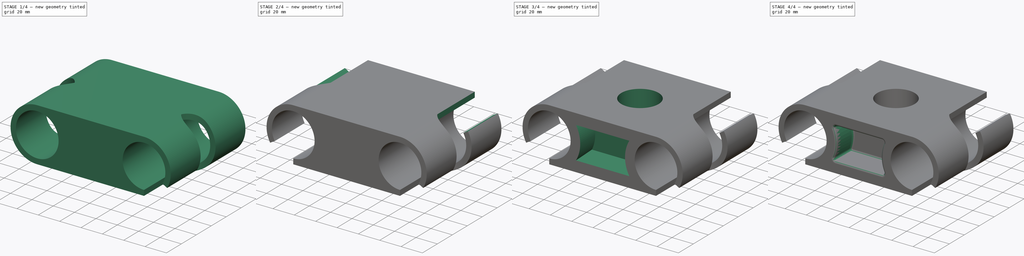
[diagram: build sequence overview — one tinted view per stage of 4, left to right]
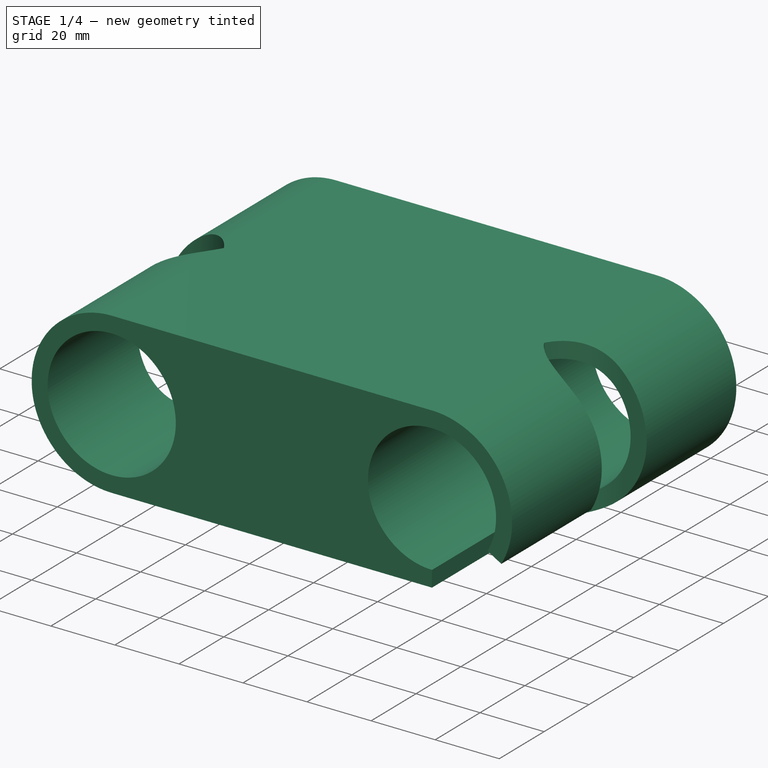
[diagram: stage 1 of 4 — iso view after this stage's code; geometry added in this stage tinted green]
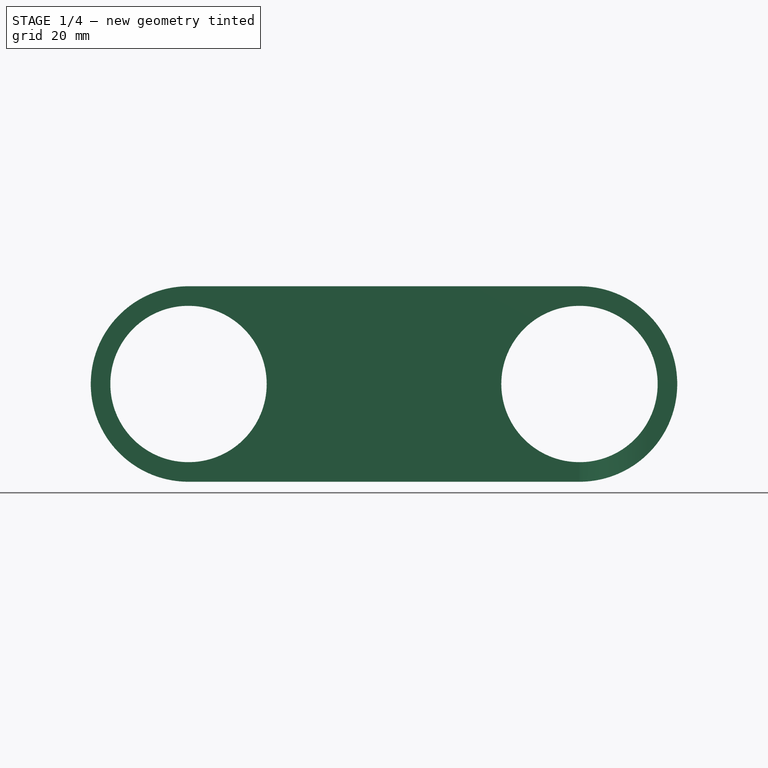
[diagram: stage 1 of 4 — front view after this stage's code; geometry added in this stage tinted green]
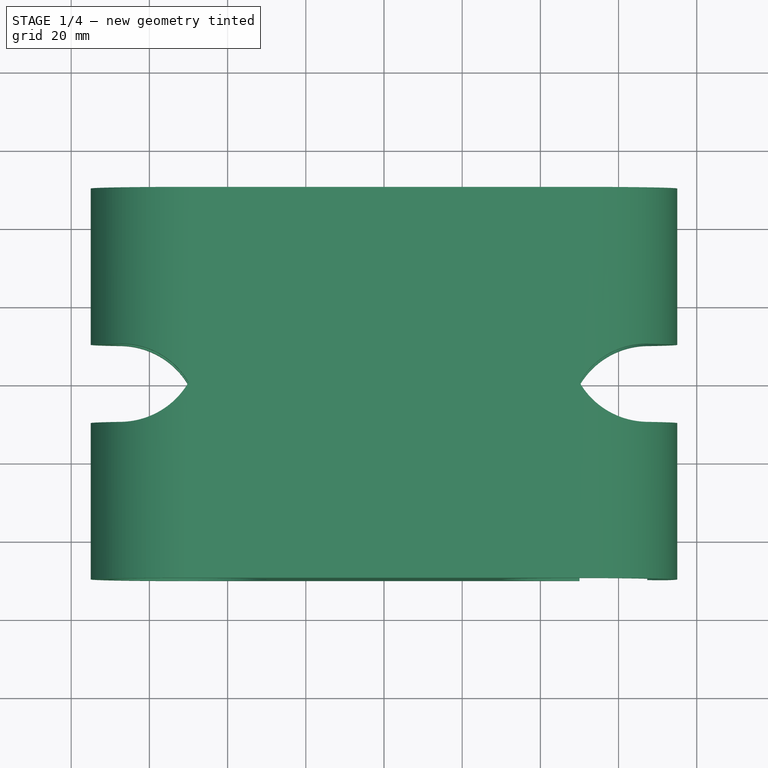
[diagram: stage 1 of 4 — top view after this stage's code; geometry added in this stage tinted green]
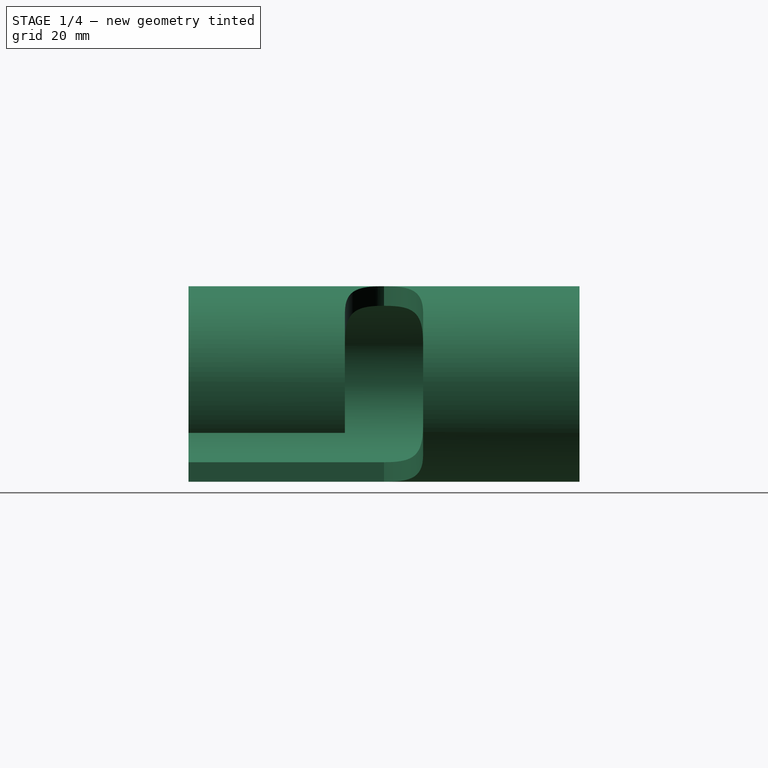
[diagram: stage 1 of 4 — right view after this stage's code; geometry added in this stage tinted green]
FCSTD DOCUMENT  (FreeCAD 1.0R39319 (Git))
Label: Mania2025
License: All rights reserved
LicenseURL: https://en.wikipedia.org/wiki/All_rights_reserved
objects: Sketcher::SketchObject×6, PartDesign::Pocket×5, PartDesign::Mirrored×4, PartDesign::Draft×2, PartDesign::Fillet×2, PartDesign::Pad×1, PartDesign::Body×1
note: 51 computed .brp shape members not serialized (recipe doc carries the construction recipe); baked Part::Feature solids carry a one-line shape summary decoded from their .brp

FEATURE [Sketcher::SketchObject] Sketch
  ArcFitTolerance = 1e-06
  AttachmentSupport = -> [XZ_Plane]
  FullyConstrained = true
  MakeInternals = false
  MapMode = 5
  Placement = pos=(0,0,0) rot=(1,0,0;1.5708rad)
  sketch-geometry (6):
    g0: ArcOfCircle CenterX=-50 CenterY=0 CenterZ=0 NormalX=0 NormalY=0 NormalZ=1 AngleXU=0 Radius=25 StartAngle=1.5708 EndAngle=4.71239
    g1: ArcOfCircle CenterX=50 CenterY=0 CenterZ=0 NormalX=0 NormalY=0 NormalZ=1 AngleXU=0 Radius=25 StartAngle=4.71239 EndAngle=7.85398
    g2: LineSegment StartX=-50 StartY=25 StartZ=0 EndX=50 EndY=25 EndZ=0
    g3: LineSegment StartX=-50 StartY=-25 StartZ=0 EndX=50 EndY=-25 EndZ=0
    g4: Circle CenterX=-50 CenterY=0 CenterZ=0 NormalX=0 NormalY=0 NormalZ=1 AngleXU=0 Radius=20
    g5: Circle CenterX=50 CenterY=0 CenterZ=0 NormalX=0 NormalY=0 NormalZ=1 AngleXU=0 Radius=20
  constraints (13):
    c: Tangent(g0,g2) = 1.5708
    c: Tangent(g0,g3) = -1.5708
    c: Tangent(g1,g2) = 1.5708
    c: Tangent(g1,g3) = -1.5708
    c: Equal(g0,g1)
    c: Horizontal(g3)
    c: DistanceX(g-1,g1) = 50
    c: Symmetric(g1,g0,g-1)
    c: Radius(g0) = 25
    c: Coincident(g4,g0)
    c: Coincident(g5,g1)
    c: Equal(g4,g5)
    c: Diameter(g4) = 40
FEATURE [PartDesign::Pad] Pad
  Direction = (0,-1,2e-16)
  Length = 100
  Length2 = 10
  Midplane = true
  Placement = pos=(0,0,0) rot=(1,0,0;1.5708rad)
  Profile = -> Sketch
  ReferenceAxis = -> Sketch [N_Axis]
  Refine = true
  Suppressed = false
  Type = 0
FEATURE [Sketcher::SketchObject] Sketch002
  ArcFitTolerance = 1e-06
  AttachmentSupport = -> [XY_Plane]
  FullyConstrained = true
  MakeInternals = false
  MapMode = 5
  sketch-geometry (7):
    g0: GeomPoint X=50 Y=-1.8e-15 Z=0
    g1: LineSegment StartX=82.3205 StartY=10 StartZ=0 EndX=67.3205 EndY=10 EndZ=0
    g2: LineSegment StartX=82.3205 StartY=0 StartZ=0 EndX=82.3205 EndY=10 EndZ=0
    g3: ArcOfCircle CenterX=67.3205 CenterY=-10 CenterZ=0 NormalX=0 NormalY=0 NormalZ=1 AngleXU=0 Radius=20 StartAngle=1.5708 EndAngle=2.61799
    g4: LineSegment StartX=67.3205 StartY=-10 StartZ=0 EndX=82.3205 EndY=-10 EndZ=0
    g5: ArcOfCircle CenterX=67.3205 CenterY=10 CenterZ=0 NormalX=0 NormalY=0 NormalZ=1 AngleXU=0 Radius=20 StartAngle=3.66519 EndAngle=4.71239
    g6: LineSegment StartX=82.3205 StartY=0 StartZ=0 EndX=82.3205 EndY=-10 EndZ=0
  constraints (19):
    c: Horizontal(g1)
    c: DistanceX(g1,g1) = 15
    c: Distance(g-1,g1) = 10
    c: Coincident(g2,g1)
    c: Vertical(g2)
    c: PointOnObject(g2,g-1)
    c: DistanceX(g-1,g0) = 50
    c: Coincident(g3,g0)
    c: Radius(g3) = 20
    c: Tangent(g3,g1) = -1.5708
    c: Horizontal(g4)
    c: Distance(g4,g1) = 20
    c: Coincident(g5,g0)
    c: Tangent(g5,g4) = -1.5708
    c: PointOnObject(g0,g-1)
    c: Vertical(g1,g4)
    c: Coincident(g6,g2)
    c: Vertical(g6)
    c: Coincident(g4,g6)
FEATURE [PartDesign::Pocket] Pocket
  BaseFeature = -> Pad
  Direction = (0,0,-1)
  Length = 5
  Length2 = 5
  Midplane = true
  Placement = pos=(0,0,0) rot=(1,0,0;1.5708rad)
  Profile = -> Sketch002
  ReferenceAxis = -> Sketch002 [N_Axis]
  Refine = true
  Suppressed = false
  Type = 1
FEATURE [PartDesign::Mirrored] Mirrored
  BaseFeature = -> Pocket
  MirrorPlane = -> YZ_Plane
  Originals = -> [Pocket]
  Placement = pos=(0,0,0) rot=(1,0,0;1.5708rad)
  Refine = true
  Suppressed = false
  TransformMode = 0
FEATURE [Sketcher::SketchObject] Sketch003
  ArcFitTolerance = 1e-06
  AttachmentSupport = -> [XZ_Plane]
  FullyConstrained = true
  MakeInternals = false
  MapMode = 5
  Placement = pos=(0,0,0) rot=(1,0,0;1.5708rad)
  sketch-geometry (5):
    g0: LineSegment StartX=50 StartY=0 StartZ=0 EndX=50 EndY=-70 EndZ=0
    g1: LineSegment StartX=50 StartY=-70 StartZ=0 EndX=100 EndY=-70 EndZ=0
    g2: LineSegment StartX=100 StartY=-70 StartZ=0 EndX=100 EndY=-28.8675 EndZ=0
    g3: LineSegment StartX=50 StartY=0 StartZ=0 EndX=100 EndY=-28.8675 EndZ=0
    g4: GeomPoint X=100 Y=-28.8675 Z=0
  constraints (14):
    c: Coincident(g0,g1)
    c: Coincident(g1,g2)
    c: Vertical(g0)
    c: Vertical(g2)
    c: Horizontal(g1)
    c: PointOnObject(g0,g-1)
    c: Coincident(g3,g0)
    c: Angle(g0,g3) = 1.0472
    c: PointOnObject(g4,g3)
    c: PointOnObject(g4,g2)
    c: DistanceX(g-1,g0) = 50
    c: Coincident(g3,g2)
    c: DistanceY(g0,g0) = 70
    c: DistanceX(g1,g1) = 50
FEATURE [PartDesign::Pocket] Pocket001
  BaseFeature = -> Mirrored
  Direction = (0,1,-2e-16)
  Length = 5
  Length2 = 5
  Placement = pos=(0,0,0) rot=(1,0,0;1.5708rad)
  Profile = -> Sketch003
  ReferenceAxis = -> Sketch003 [N_Axis]
  Refine = true
  Reversed = true
  Suppressed = false
  Type = 1
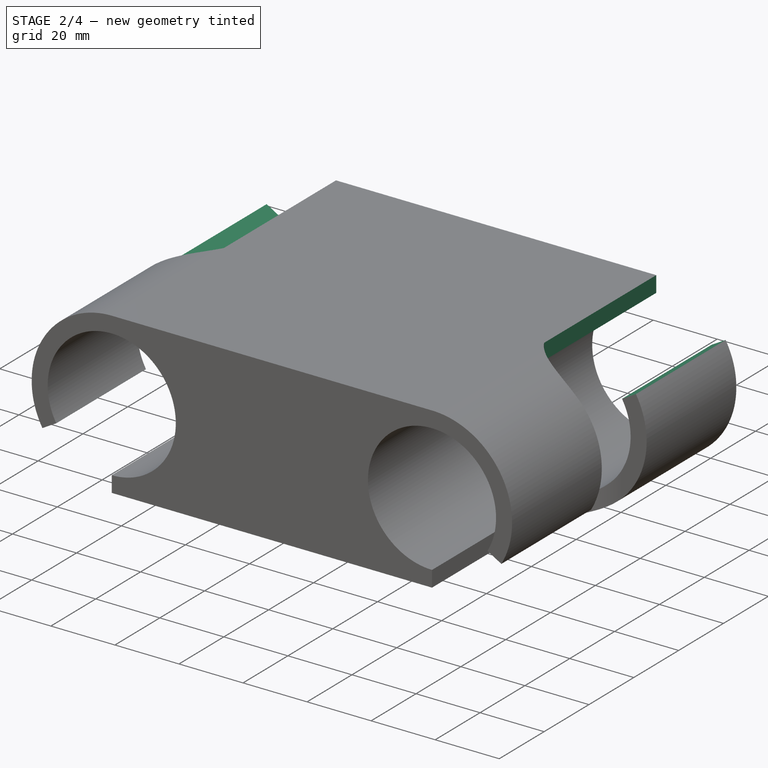
[diagram: stage 2 of 4 — iso view after this stage's code; geometry added in this stage tinted green]
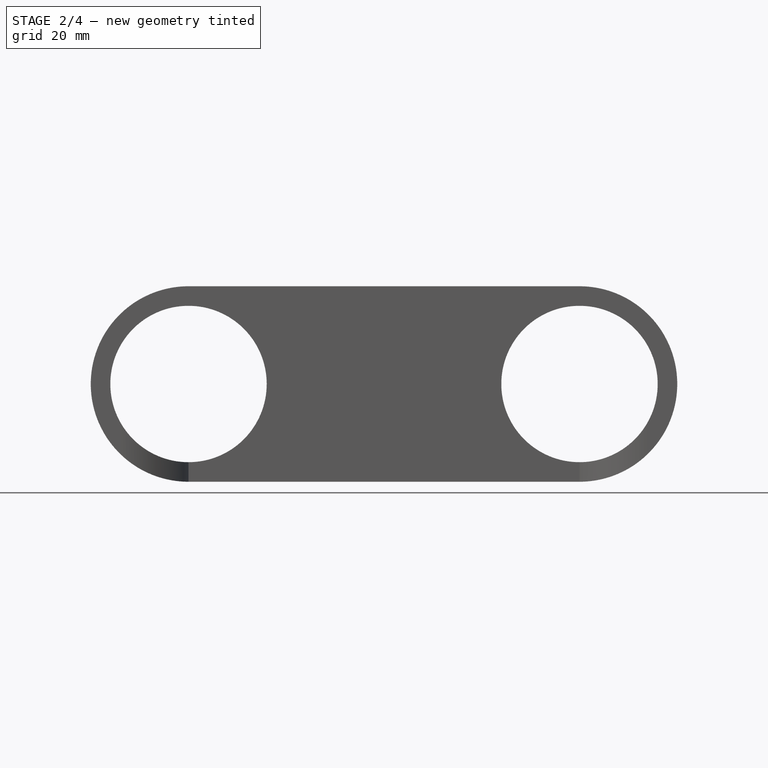
[diagram: stage 2 of 4 — front view after this stage's code; geometry added in this stage tinted green]
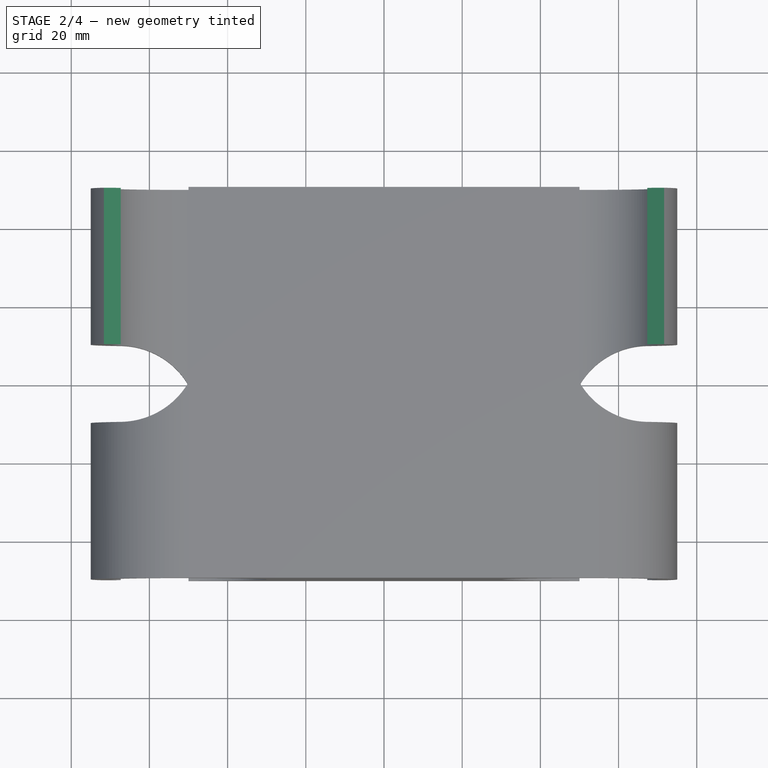
[diagram: stage 2 of 4 — top view after this stage's code; geometry added in this stage tinted green]
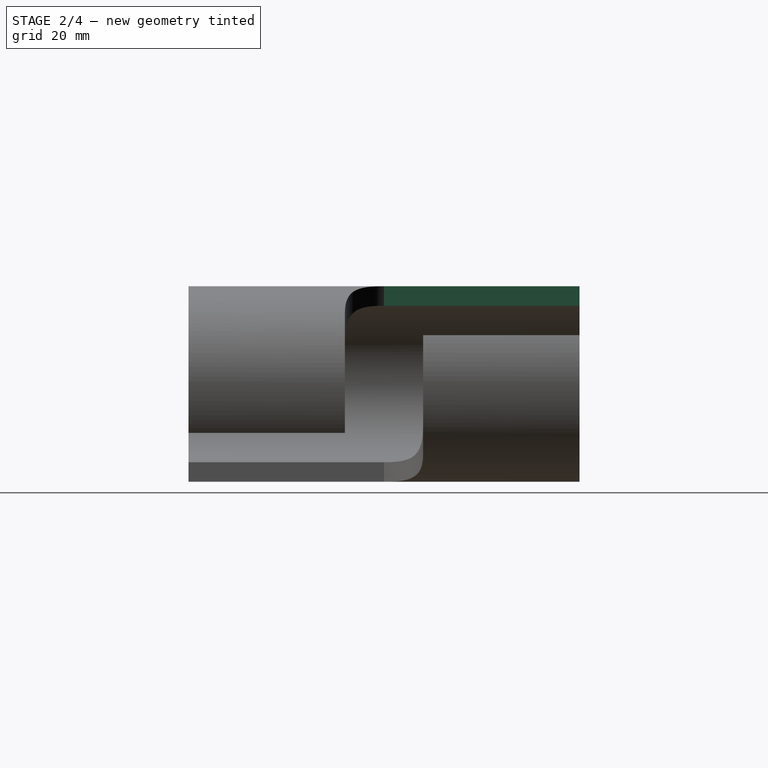
[diagram: stage 2 of 4 — right view after this stage's code; geometry added in this stage tinted green]
FEATURE [Sketcher::SketchObject] Sketch004
  ArcFitTolerance = 1e-06
  AttachmentSupport = -> [XZ_Plane]
  FullyConstrained = true
  MakeInternals = false
  MapMode = 5
  Placement = pos=(0,0,0) rot=(1,0,0;1.5708rad)
  sketch-geometry (4):
    g0: LineSegment StartX=50 StartY=0 StartZ=0 EndX=50 EndY=70 EndZ=0
    g1: LineSegment StartX=50 StartY=70 StartZ=0 EndX=100 EndY=70 EndZ=0
    g2: LineSegment StartX=100 StartY=70 StartZ=0 EndX=100 EndY=28.8675 EndZ=0
    g3: LineSegment StartX=50 StartY=0 StartZ=0 EndX=100 EndY=28.8675 EndZ=0
  constraints (12):
    c: PointOnObject(g0,g-1)
    c: DistanceX(g-1,g0) = 50
    c: Vertical(g0)
    c: Distance(g1) = 50
    c: Horizontal(g1)
    c: Coincident(g1,g0)
    c: Coincident(g2,g1)
    c: Perpendicular(g2,g1)
    c: Coincident(g3,g0)
    c: Coincident(g3,g2)
    c: DistanceY(g0,g0) = 70
    c: Angle(g3,g0) = 1.0472
FEATURE [PartDesign::Pocket] Pocket002
  BaseFeature = -> Pocket001
  Direction = (0,1,-2e-16)
  Length = 5
  Length2 = 5
  Placement = pos=(0,0,0) rot=(1,0,0;1.5708rad)
  Profile = -> Sketch004
  ReferenceAxis = -> Sketch004 [N_Axis]
  Refine = true
  Suppressed = false
  Type = 1
FEATURE [PartDesign::Mirrored] Mirrored001
  BaseFeature = -> Pocket002
  MirrorPlane = -> YZ_Plane
  Originals = -> [Pocket001]
  Placement = pos=(0,0,0) rot=(1,0,0;1.5708rad)
  Refine = true
  Suppressed = false
  TransformMode = 0
FEATURE [PartDesign::Mirrored] Mirrored002
  BaseFeature = -> Mirrored001
  MirrorPlane = -> YZ_Plane
  Originals = -> [Pocket002]
  Placement = pos=(0,0,0) rot=(1,0,0;1.5708rad)
  Refine = true
  Suppressed = false
  TransformMode = 0
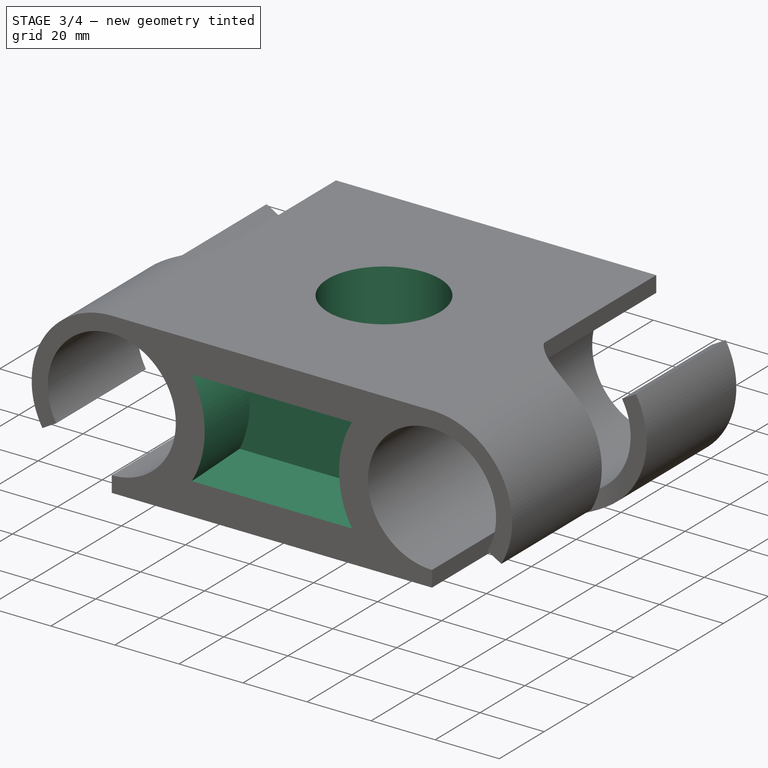
[diagram: stage 3 of 4 — iso view after this stage's code; geometry added in this stage tinted green]
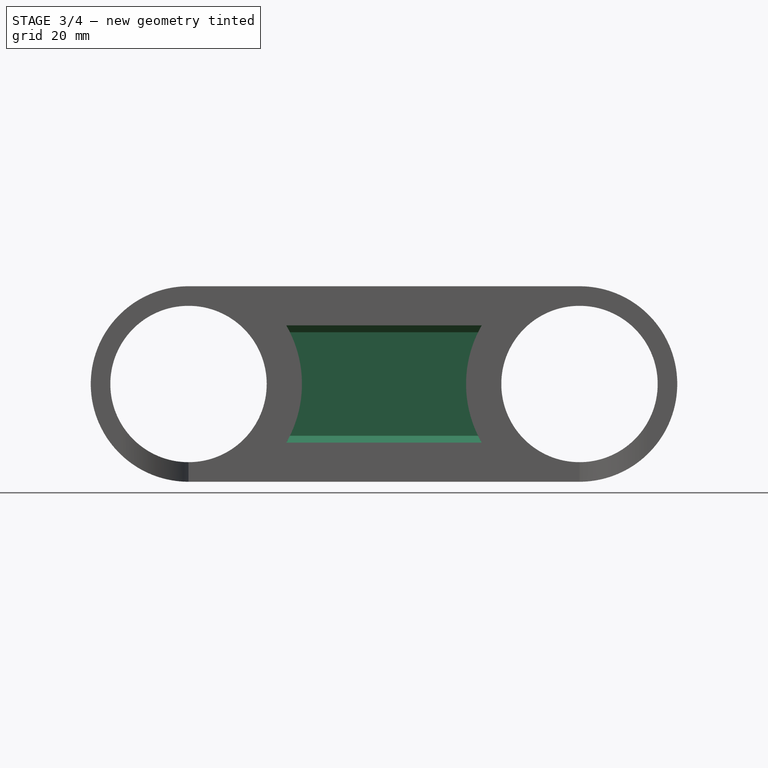
[diagram: stage 3 of 4 — front view after this stage's code; geometry added in this stage tinted green]
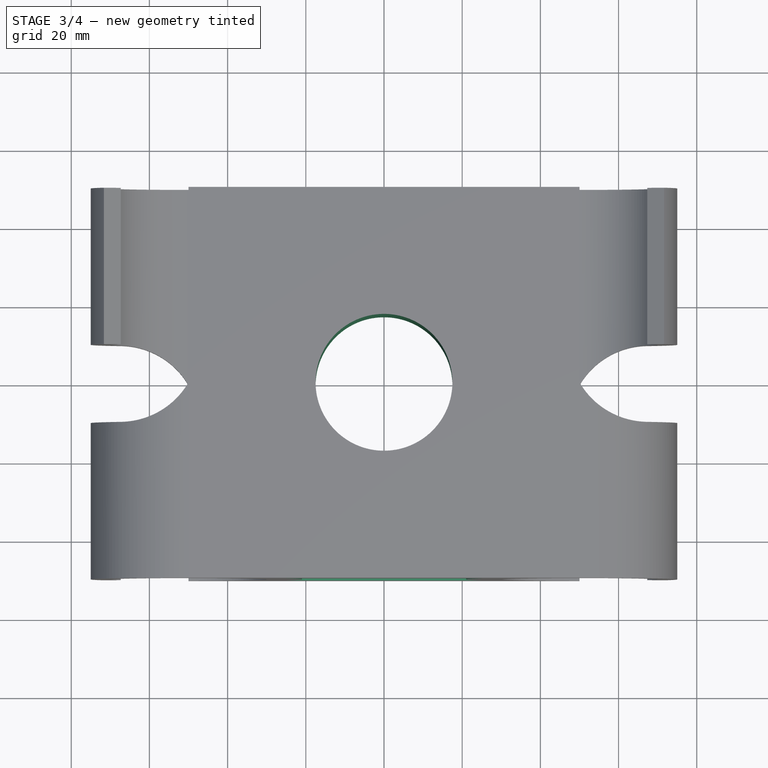
[diagram: stage 3 of 4 — top view after this stage's code; geometry added in this stage tinted green]
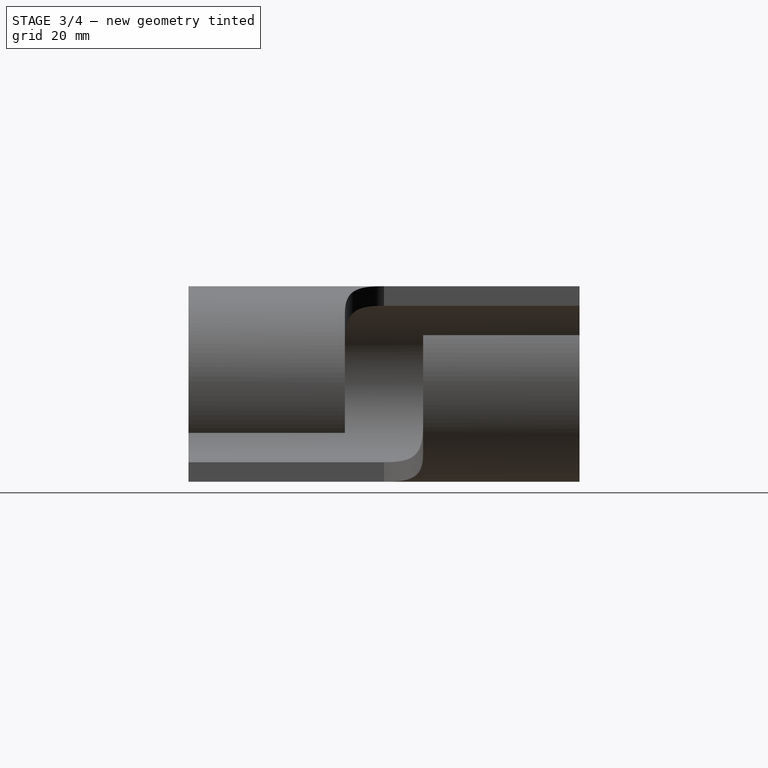
[diagram: stage 3 of 4 — right view after this stage's code; geometry added in this stage tinted green]
FEATURE [Sketcher::SketchObject] Sketch005
  ArcFitTolerance = 1e-06
  AttachmentSupport = -> [XY_Plane]
  FullyConstrained = true
  MakeInternals = false
  MapMode = 5
  sketch-geometry (1):
    g0: Circle CenterX=0 CenterY=0 CenterZ=0 NormalX=0 NormalY=0 NormalZ=1 AngleXU=0 Radius=17.5
  constraints (2):
    c: Coincident(g0,g-1)
    c: Diameter(g0) = 35
FEATURE [PartDesign::Pocket] Pocket003
  BaseFeature = -> Mirrored002
  Direction = (0,0,-1)
  Length = 5
  Length2 = 5
  Midplane = true
  Placement = pos=(0,0,0) rot=(1,0,0;1.5708rad)
  Profile = -> Sketch005
  ReferenceAxis = -> Sketch005 [N_Axis]
  Refine = true
  Suppressed = false
  Type = 1
FEATURE [Sketcher::SketchObject] Sketch006
  ArcFitTolerance = 1e-06
  AttachmentSupport = -> [Pocket003]
  ExternalGeometry = -> [Pocket003]
  FullyConstrained = true
  MakeInternals = false
  MapMode = 5
  Placement = pos=(0,-50,0) rot=(1,0,0;1.5708rad)
  sketch-geometry (4):
    g0: LineSegment StartX=-25 StartY=-15 StartZ=0 EndX=25 EndY=-15 EndZ=0
    g1: LineSegment StartX=25 StartY=15 StartZ=0 EndX=-25 EndY=15 EndZ=0
    g2: ArcOfCircle CenterX=50.9808 CenterY=0 CenterZ=0 NormalX=0 NormalY=0 NormalZ=1 AngleXU=0 Radius=30 StartAngle=2.61799 EndAngle=3.66519
    g3: ArcOfCircle CenterX=-50.9808 CenterY=0 CenterZ=0 NormalX=0 NormalY=0 NormalZ=1 AngleXU=0 Radius=30 StartAngle=5.75959 EndAngle=6.80678
  constraints (13):
    c: Horizontal(g0)
    c: PointOnObject(g2,g-1)
    c: Coincident(g2,g1)
    c: Coincident(g2,g0)
    c: Vertical(g1,g0)
    c: Radius(g2) = 30
    c: PointOnObject(g3,g-1)
    c: Coincident(g3,g1)
    c: Coincident(g3,g0)
    c: Radius(g3) = 30
    c: Symmetric(g1,g1,g-2)
    c: DistanceX(g1,g1) = 50
    c: Distance(g1,g0) = 30
FEATURE [PartDesign::Pocket] Pocket004
  BaseFeature = -> Pocket003
  Direction = (0,1,-2e-16)
  Length = 20
  Length2 = 5
  Placement = pos=(0,0,0) rot=(1,0,0;1.5708rad)
  Profile = -> Sketch006
  ReferenceAxis = -> Sketch006 [N_Axis]
  Refine = true
  Suppressed = false
  Type = 0
FEATURE [PartDesign::Draft] Draft
  Angle = 5
  Base = -> Pocket004 [Face31,Face29]
  BaseFeature = -> Pocket004
  NeutralPlane = -> Pocket004 [Face15]
  Placement = pos=(0,0,0) rot=(1,0,0;1.5708rad)
  PullDirection = -> Pocket004 [Edge20]
  Refine = true
  SupportTransform = false
  Suppressed = false
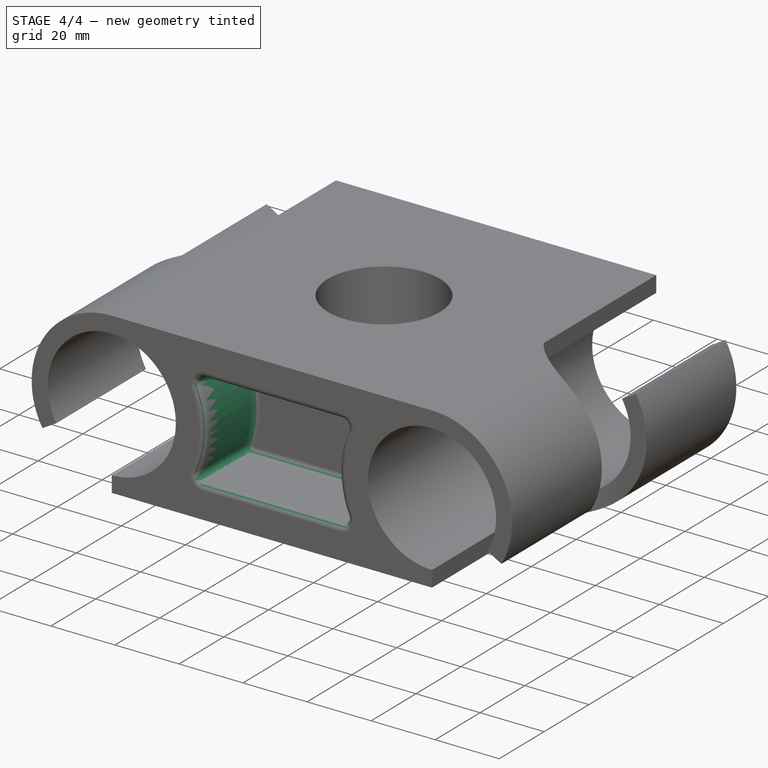
[diagram: stage 4 of 4 — iso view after this stage's code; geometry added in this stage tinted green]
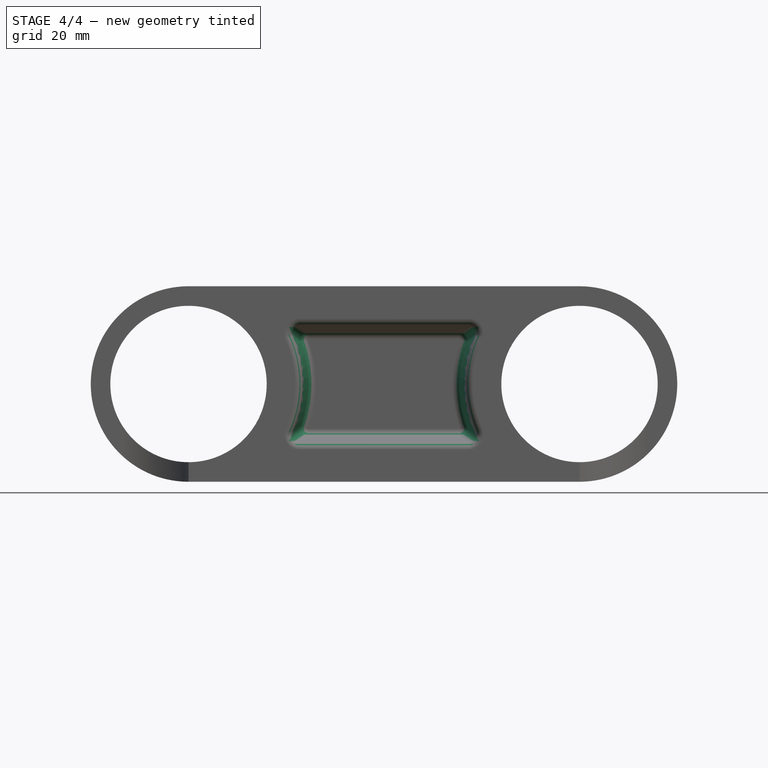
[diagram: stage 4 of 4 — front view after this stage's code; geometry added in this stage tinted green]
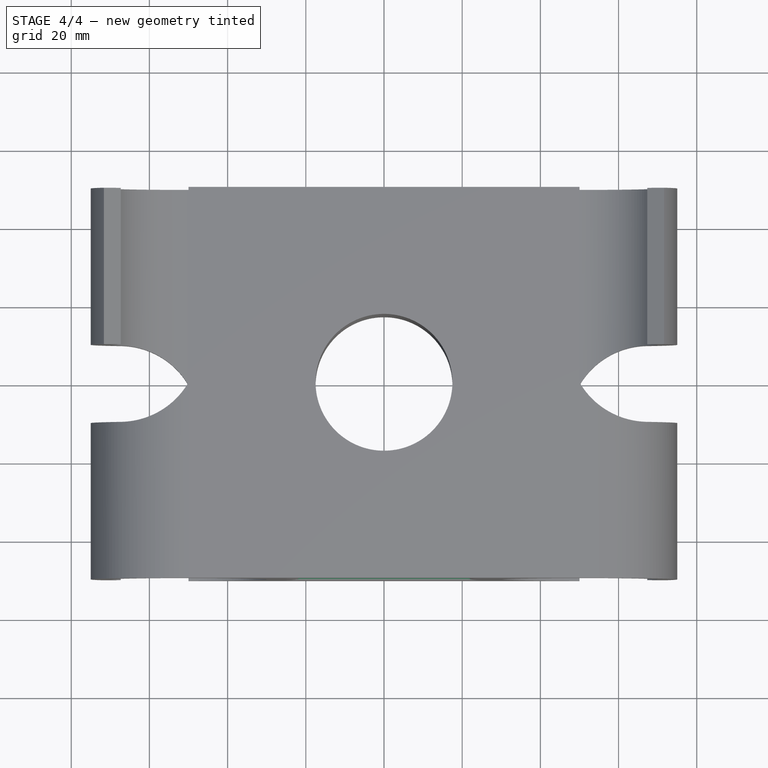
[diagram: stage 4 of 4 — top view after this stage's code; geometry added in this stage tinted green]
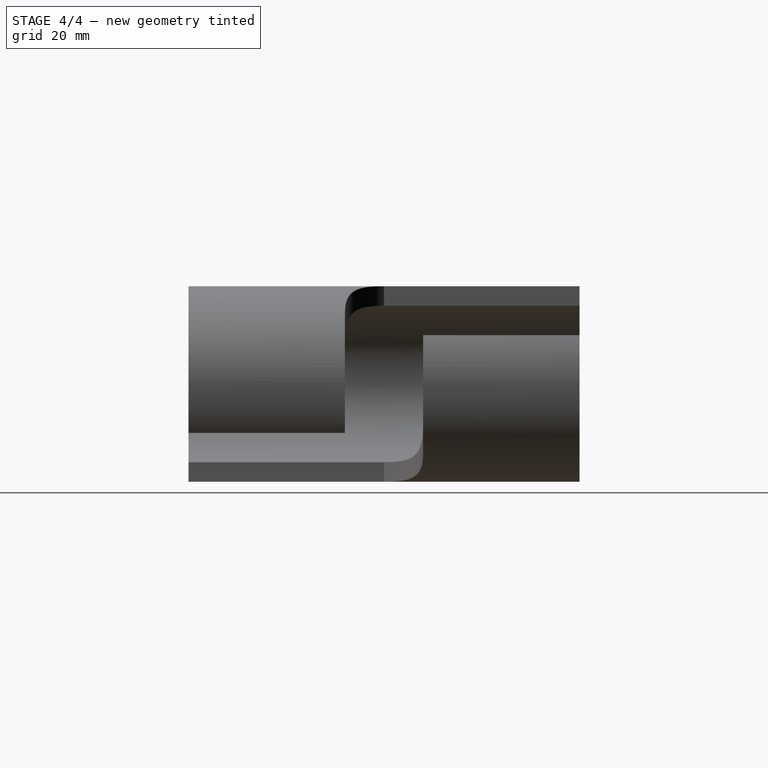
[diagram: stage 4 of 4 — right view after this stage's code; geometry added in this stage tinted green]
FEATURE [PartDesign::Draft] Draft001
  Angle = 5
  Base = -> Draft [Face28,Face30]
  BaseFeature = -> Draft
  NeutralPlane = -> Draft [Face15]
  Placement = pos=(0,0,0) rot=(1,0,0;1.5708rad)
  PullDirection = -> Draft [Edge17]
  Refine = true
  SupportTransform = false
  Suppressed = false
FEATURE [PartDesign::Mirrored] Mirrored003
  BaseFeature = -> Draft001
  MirrorPlane = -> XZ_Plane
  Originals = -> [Pocket004,Draft,Draft001]
  Placement = pos=(0,0,0) rot=(1,0,0;1.5708rad)
  Refine = true
  Suppressed = false
  TransformMode = 0
FEATURE [PartDesign::Fillet] Fillet
  Base = -> Mirrored003 [Edge79,Edge78,Edge77,Edge80,Edge99,Edge100,Edge97,Edge98,Edge95,Edge96,Edge94,Edge101]
  BaseFeature = -> Mirrored003
  Placement = pos=(0,0,0) rot=(1,0,0;1.5708rad)
  Radius = 2
  Refine = true
  SupportTransform = false
  Suppressed = false
  UseAllEdges = false
FEATURE [PartDesign::Fillet] Fillet001
  Base = -> Fillet [Edge145,Edge140,Edge141,Edge144,Edge143,Edge112,Edge138,Edge109,Edge139,Edge110,Edge142,Edge111]
  BaseFeature = -> Fillet
  Placement = pos=(0,0,0) rot=(1,0,0;1.5708rad)
  Radius = 2
  Refine = true
  SupportTransform = false
  Suppressed = false
  UseAllEdges = false
FEATURE [PartDesign::Body] Body
  AllowCompound = false
  Group = -> [Sketch,Pad,Sketch002,Pocket,Mirrored,Sketch003,Pocket001,Sketch004,Pocket002,Mirrored001,Mirrored002,Sketch005,Pocket003,Sketch006,Pocket004,Draft,Draft001,Mirrored003,Fillet,Fillet001]
  Origin = -> Origin
  Tip = -> Fillet001
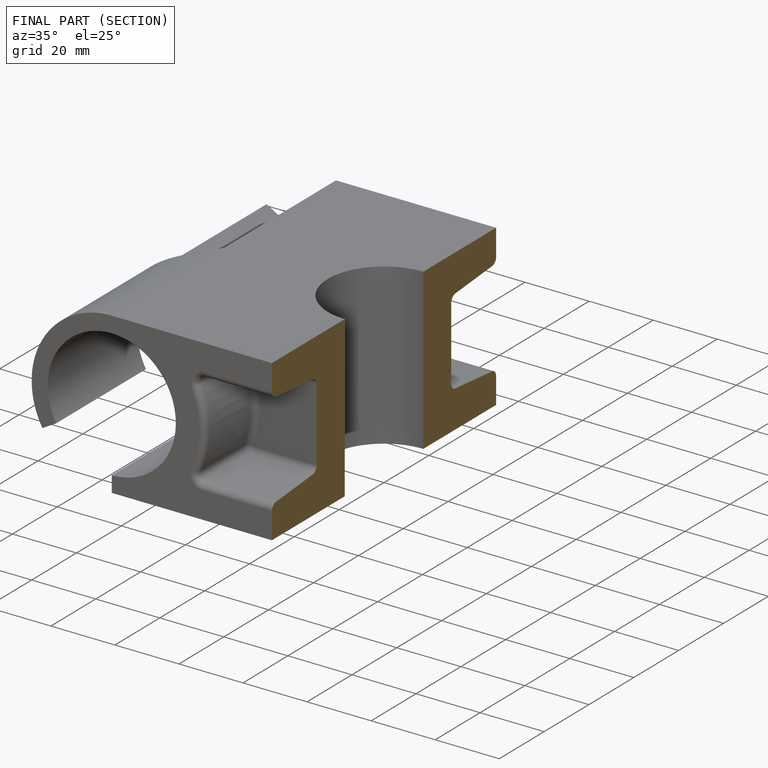
[diagram: finished part — half-section view (interior)]
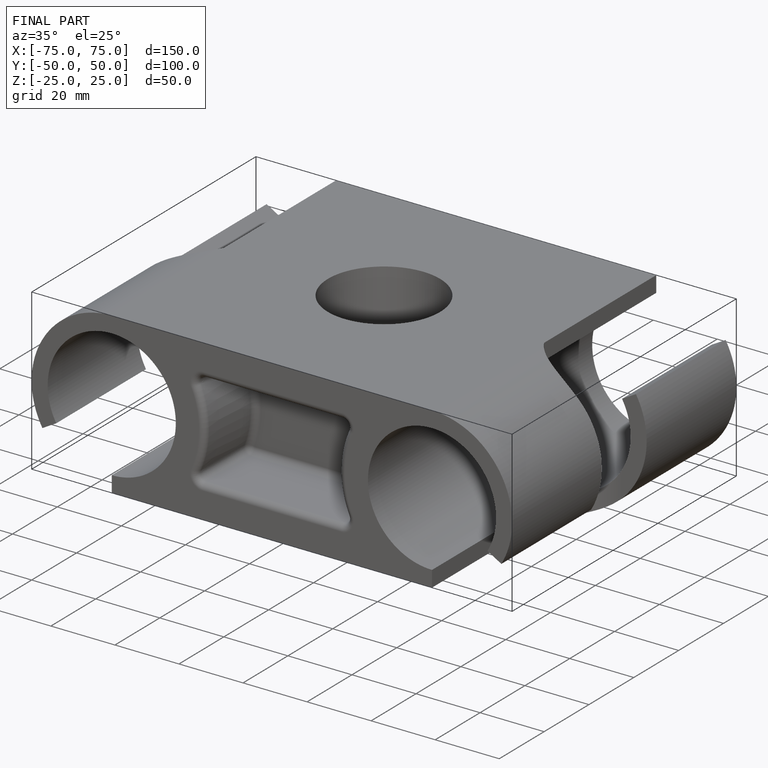
[diagram: finished part — iso view with bounding-box wireframe]
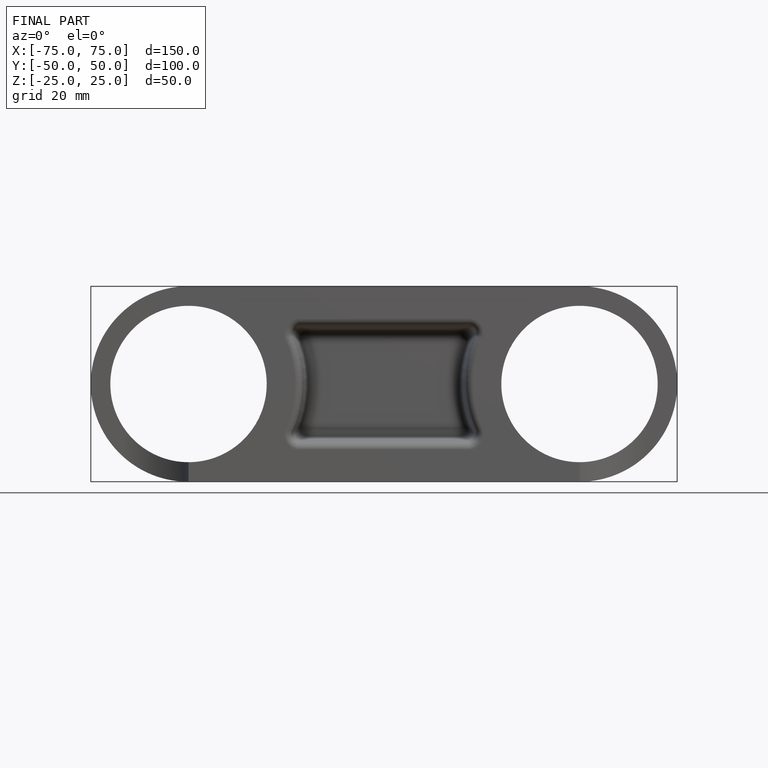
[diagram: finished part — front view with bounding-box wireframe]
